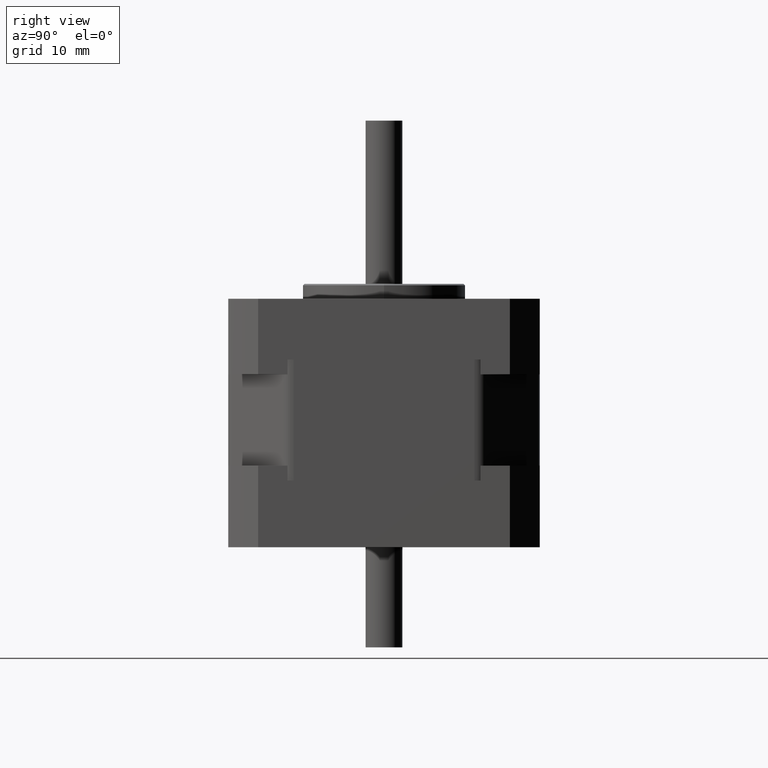
[diagram: clean part render]
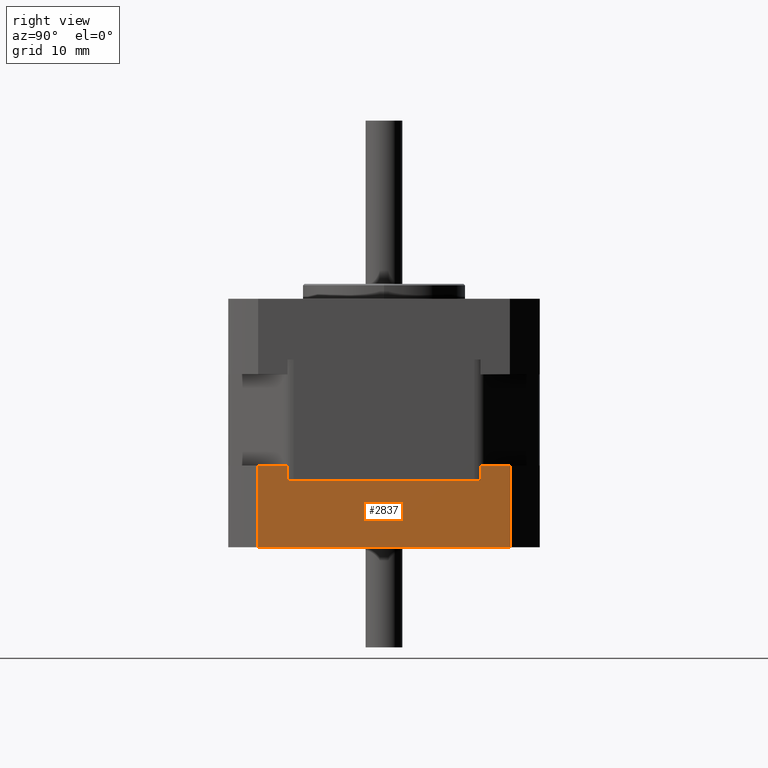
[diagram: same view with one face highlighted and labeled with its STEP entity id]
A machine part, right view. The second image highlights one B-rep face of the part: STEP entity #2837.
In plain terms, the highlighted planar face has unit normal (1, 0, 0).
Its self-contained STEP definition (entity closure, byte-faithful):
#180=PLANE('',#3128);
#317=FACE_OUTER_BOUND('',#534,.T.);
#534=EDGE_LOOP('',(#2130,#2131,#2132,#2133,#2134,#2135,#2136,#2137));
#774=LINE('',#4620,#932);
#788=LINE('',#4650,#946);
#792=LINE('',#4655,#950);
#798=LINE('',#4676,#956);
#800=LINE('',#4683,#958);
#804=LINE('',#4696,#962);
#805=LINE('',#4698,#963);
#806=LINE('',#4699,#964);
#932=VECTOR('',#3728,10.);
#946=VECTOR('',#3748,10.);
#950=VECTOR('',#3754,10.);
#956=VECTOR('',#3772,10.);
#958=VECTOR('',#3780,10.);
#962=VECTOR('',#3794,10.);
#963=VECTOR('',#3795,10.);
#964=VECTOR('',#3796,10.);
#1282=VERTEX_POINT('',#4616);
#1284=VERTEX_POINT('',#4619);
#1295=VERTEX_POINT('',#4644);
#1297=VERTEX_POINT('',#4648);
#1306=VERTEX_POINT('',#4675);
#1308=VERTEX_POINT('',#4681);
#1312=VERTEX_POINT('',#4695);
#1313=VERTEX_POINT('',#4697);
#1573=EDGE_CURVE('',#1284,#1282,#774,.T.);
#1587=EDGE_CURVE('',#1295,#1297,#788,.T.);
#1591=EDGE_CURVE('',#1282,#1295,#792,.T.);
#1601=EDGE_CURVE('',#1284,#1306,#798,.T.);
#1605=EDGE_CURVE('',#1308,#1297,#800,.T.);
#1611=EDGE_CURVE('',#1308,#1312,#804,.T.);
#1612=EDGE_CURVE('',#1312,#1313,#805,.T.);
#1613=EDGE_CURVE('',#1306,#1313,#806,.T.);
#2130=ORIENTED_EDGE('',*,*,#1573,.T.);
#2131=ORIENTED_EDGE('',*,*,#1591,.T.);
#2132=ORIENTED_EDGE('',*,*,#1587,.T.);
#2133=ORIENTED_EDGE('',*,*,#1605,.F.);
#2134=ORIENTED_EDGE('',*,*,#1611,.T.);
#2135=ORIENTED_EDGE('',*,*,#1612,.T.);
#2136=ORIENTED_EDGE('',*,*,#1613,.F.);
#2137=ORIENTED_EDGE('',*,*,#1601,.F.);
#2837=ADVANCED_FACE('',(#317),#180,.T.);
#3128=AXIS2_PLACEMENT_3D('',#4694,#3792,#3793);
#3728=DIRECTION('',(0.,0.,-1.));
#3748=DIRECTION('',(0.,0.,1.));
#3754=DIRECTION('',(1.02482125350014E-15,-1.,0.));
#3772=DIRECTION('',(-1.02482125350014E-15,1.,0.));
#3780=DIRECTION('',(-1.02482125350014E-15,1.,0.));
#3792=DIRECTION('center_axis',(1.,1.02482125350014E-15,0.));
#3793=DIRECTION('ref_axis',(0.,0.,-1.));
#3794=DIRECTION('',(0.,0.,-1.));
#3795=DIRECTION('',(-1.02482125350014E-15,1.,0.));
#3796=DIRECTION('',(0.,0.,-1.));
#4616=CARTESIAN_POINT('',(21.,13.,-8.15));
#4619=CARTESIAN_POINT('',(21.,13.,-6.15));
#4620=CARTESIAN_POINT('',(21.,13.,-6.15));
#4644=CARTESIAN_POINT('',(21.,-12.9999999999999,-8.15));
#4648=CARTESIAN_POINT('',(21.,-12.9999999999999,-6.15));
#4650=CARTESIAN_POINT('',(21.,-12.9999999999999,-6.15));
#4655=CARTESIAN_POINT('',(21.,-8.48528137423854,-8.15));
#4675=CARTESIAN_POINT('',(21.,16.9705627484772,-6.15));
#4676=CARTESIAN_POINT('',(21.,-16.9705627484771,-6.15));
#4681=CARTESIAN_POINT('',(21.,-16.9705627484771,-6.15));
#4683=CARTESIAN_POINT('',(21.,-16.9705627484771,-6.15));
#4694=CARTESIAN_POINT('Origin',(21.,-16.9705627484771,-6.15));
#4695=CARTESIAN_POINT('',(21.,-16.9705627484771,-17.15));
#4696=CARTESIAN_POINT('',(21.,-16.9705627484771,-6.15));
#4697=CARTESIAN_POINT('',(21.,16.9705627484772,-17.15));
#4698=CARTESIAN_POINT('',(21.,-16.9705627484771,-17.15));
#4699=CARTESIAN_POINT('',(21.,16.9705627484772,-6.15));